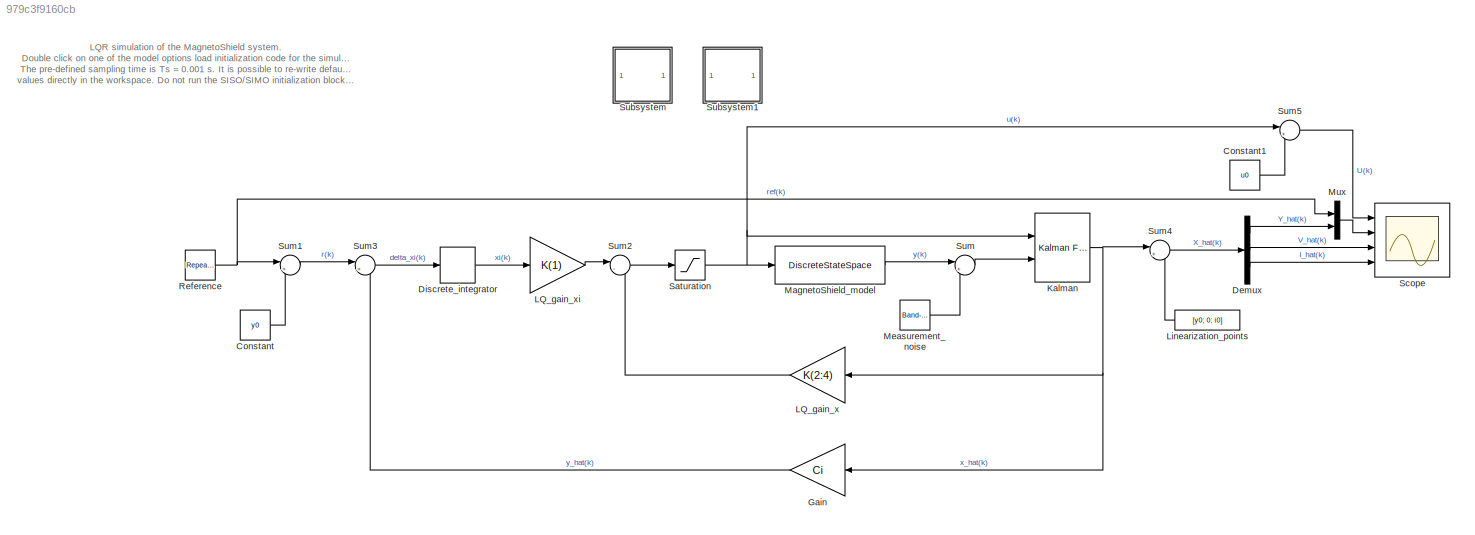
MODEL slx_979c3f9160cb
KIND model
CONFIG AbsTol = auto
CONFIG EnableMultiTasking = off
CONFIG FixedStep = auto
CONFIG MaxStep = auto
CONFIG MinStep = auto
CONFIG RelTol = 1e-3
CONFIG SampleTimeConstraint = Unconstrained
CONFIG Solver = VariableStepAuto
CONFIG SolverName = VariableStepAuto
CONFIG StartTime = 0.0
CONFIG StopTime = 24
BLOCK [Constant] Constant
  Value = y0
BLOCK [Constant] Constant1
  Value = u0
BLOCK [Demux] Demux
  DisplayOption = bar
  Outputs = 3
  Ports = [1, 3]
BLOCK [DiscreteIntegrator] Discrete_integrator
  ICPrevOutput = DiscIntNeverNeededParam
  ICPrevScaledInput = DiscIntNeverNeededParam
  InitialConditionSetting = Auto
  IntegratorMethod = Accumulation: Forward Euler
  LimitOutput = on
  Ports = [1, 1]
  SampleTime = Ts
BLOCK [Gain] Gain
  Gain = Ci
  Multiplication = Matrix(K*u)
  OutDataTypeStr = Inherit: Inherit via internal rule
  ParamDataTypeStr = Inherit: Inherit via internal rule
  SaturateOnIntegerOverflow = off
BLOCK [Reference] Kalman  REF=ctrlSharedLib/Kalman Filter
  Ports = [2, 1]
  SourceBlock = ctrlSharedLib/Kalman Filter
  SourceProductBaseCode = CT,ID
  SourceType = ctrlKalmanFilter
BLOCK [Gain] LQ_gain_x
  Gain = K(2:4)
  Multiplication = Matrix(K*u)
  OutDataTypeStr = Inherit: Inherit via internal rule
  ParamDataTypeStr = Inherit: Inherit via internal rule
  SaturateOnIntegerOverflow = off
BLOCK [Gain] LQ_gain_xi
  Gain = K(1)
  Multiplication = Matrix(K*u)
  OutDataTypeStr = Inherit: Inherit via internal rule
  ParamDataTypeStr = Inherit: Inherit via internal rule
  SaturateOnIntegerOverflow = off
BLOCK [Constant] Linearization_points
  Value = [y0; 0; i0]
BLOCK [DiscreteStateSpace] MagnetoShield_model
  A = A
  B = B
  C = C
  D = D
  InitialCondition = [0.017-y0;0;0-i0]
  SampleTime = Ts
BLOCK [Reference] Measurement_noise  REF=simulink/Sources/Band-Limited
White Noise
  Ports = [0, 1]
  SourceBlock = simulink/Sources/Band-Limited\nWhite Noise
  SourceProductBaseCode = SL
  SourceType = Band-Limited White Noise.
BLOCK [Mux] Mux
  DisplayOption = bar
  Inputs = 2
  Ports = [2, 1]
BLOCK [Reference] Reference  REF=simulink/Sources/Repeating
Sequence
Stair
  Ports = [0, 1]
  SourceBlock = simulink/Sources/Repeating\nSequence\nStair
  SourceProductBaseCode = SL
  SourceType = Repeating Sequence Stair
BLOCK [Saturate] Saturation
  InputPortMap = u0
  LowerLimit = 0-u0
  Ports = [1, 1]
  UpperLimit = 12-u0
BLOCK [Scope] Scope
  Floating = off
  NumInputPorts = 4
  Ports = [4]
  ScopeSpecificationString = Simulink.scopes.TimeScopeBlockCfg('CurrentConfiguration', extmgr.ConfigurationSet(extmgr.Configuration('Core','General UI',true),extmgr.Configuration('Core','Source UI',true),extmgr.Configuration('Sources','WiredSimulink',true,'DataLoggingVariableName','MagnetoShieldLQ_Simulation','DataLoggingSaveFormat','StructureWithTime'),extmgr.Configuration('Visuals','Time Domain',true,'SerializedDisplays',{s...<+3577ch>
BLOCK [SubSystem] Subsystem
  OpenFcn = clear;close all;clc;\ncd(fileparts(which(gcs)));\nload '../../../matlab/examples/MagnetoShield/MagnetoShield_Models_Greybox_SS';\n%% MagnetoShield - LQR simulation and control initialization for Simulink\n\norder = 'SISO';                 % SISO - position / SIMO - position & current\nTs = 0.0015;                    % Sampling of the Simulink simulation\n\n% Matrices extraction from model\nmodeld=c2d(model...<+1140ch>
  Ports = []
  RequestExecContextInheritance = off
BLOCK [SubSystem] Subsystem1
  OpenFcn = clear;close all;clc;\ncd(fileparts(which(gcs)));\nload '../../../matlab/examples/MagnetoShield/MagnetoShield_Models_Greybox_SS';\n%% MagnetoShield - LQR simulation and control initialization for Simulink\n\norder = 'SIMO';                 % SISO - position / SIMO - position & current\nTs = 0.0015;                    % Sampling of the Simulink simulation\n\n% Matrices extraction from model\nmodeld=c2d(model...<+1239ch>
  Ports = []
  RequestExecContextInheritance = off
BLOCK [Sum] Sum
  IconShape = round
  InputSameDT = off
  Inputs = |++
  OutDataTypeStr = Inherit: Inherit via internal rule
  Ports = [2, 1]
  SaturateOnIntegerOverflow = off
BLOCK [Sum] Sum1
  IconShape = round
  InputSameDT = off
  Inputs = |+-
  OutDataTypeStr = Inherit: Inherit via internal rule
  Ports = [2, 1]
  SaturateOnIntegerOverflow = off
BLOCK [Sum] Sum2
  IconShape = round
  InputSameDT = off
  Inputs = |--
  OutDataTypeStr = Inherit: Inherit via internal rule
  Ports = [2, 1]
  SaturateOnIntegerOverflow = off
BLOCK [Sum] Sum3
  IconShape = round
  InputSameDT = off
  Inputs = |+-
  OutDataTypeStr = Inherit: Inherit via internal rule
  Ports = [2, 1]
  SaturateOnIntegerOverflow = off
BLOCK [Sum] Sum4
  IconShape = round
  InputSameDT = off
  Inputs = |++
  OutDataTypeStr = Inherit: Inherit via internal rule
  Ports = [2, 1]
  SaturateOnIntegerOverflow = off
BLOCK [Sum] Sum5
  IconShape = round
  InputSameDT = off
  Inputs = |++
  OutDataTypeStr = Inherit: Inherit via internal rule
  Ports = [2, 1]
  SaturateOnIntegerOverflow = off
ANNOTATION (root): LQR simulation of the MagnetoShield system. Double click on one of the model options load initialization code for the simulation. The pre-defined sampling time is Ts = 0.001 s. It is possible to re-write default values directly in the workspace. Do not run the SISO/SIMO initialization blocks in this case.
LINE Constant1:1 -> Sum5:2
LINE Constant:1 -> Sum1:2
LINE Demux:1 -> Mux:2
LINE Demux:2 -> Scope:3
LINE Demux:3 -> Scope:4
LINE Discrete_integrator:1 -> LQ_gain_xi:1
LINE Gain:1 -> Sum3:2
NET Kalman:1 -> Gain:1, LQ_gain_x:1, Sum4:1
LINE LQ_gain_x:1 -> Sum2:2
LINE LQ_gain_xi:1 -> Sum2:1
LINE Linearization_points:1 -> Sum4:2
LINE MagnetoShield_model:1 -> Sum:1
LINE Measurement_noise:1 -> Sum:2
LINE Mux:1 -> Scope:2
NET Reference:1 -> Mux:1, Sum1:1
NET Saturation:1 -> Kalman:1, MagnetoShield_model:1, Sum5:1
LINE Sum1:1 -> Sum3:1
LINE Sum2:1 -> Saturation:1
LINE Sum3:1 -> Discrete_integrator:1
LINE Sum4:1 -> Demux:1
LINE Sum5:1 -> Scope:1
LINE Sum:1 -> Kalman:2
note: NET lines group one-source signal fan-out (src -> all destinations, sorted); 1:1 wires keep LINE
